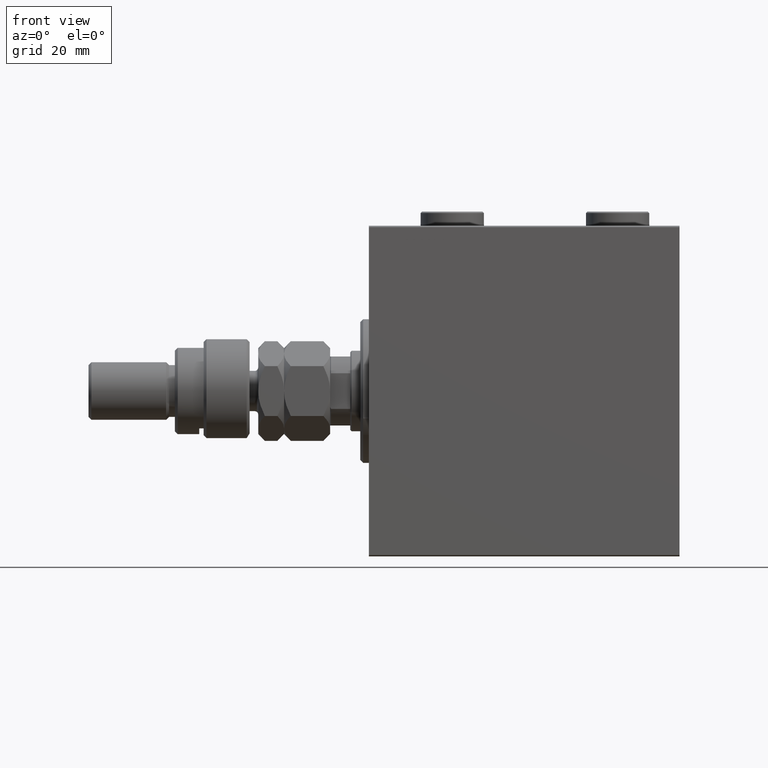
[diagram: clean part render]
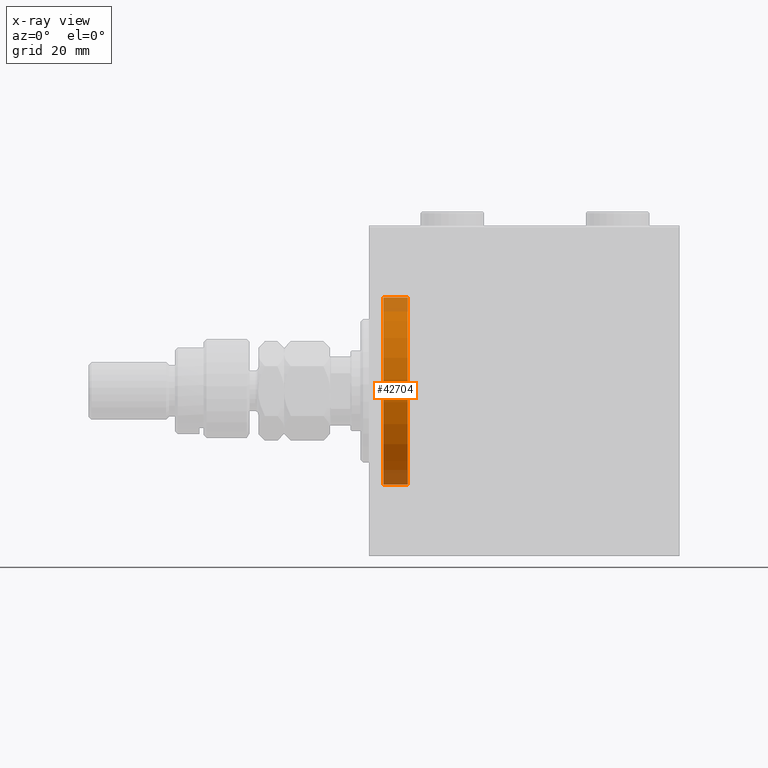
[diagram: x-ray — body ghosted, one internal face saturated and labeled with its STEP entity id]
A machine part, front view, then the same camera in x-ray: the body is ghosted and one INTERNAL B-rep face — a face not visible from any outside direction — is saturated and labeled: STEP entity #42704.
In plain terms, the highlighted cylindrical surface (partial cylindrical patch) has radius 32.5 mm, axis along (-1, -0, -0).
Its self-contained STEP definition (entity closure, byte-faithful):
#218 = CARTESIAN_POINT ( 'NONE',  ( 13.50000000000000178, 0.000000000000000000, 32.50000000000000000 ) ) ;
#223 = CARTESIAN_POINT ( 'NONE',  ( 13.50000000000000178, 0.000000000000000000, 32.50000000000000000 ) ) ;
#1411 = AXIS2_PLACEMENT_3D ( 'NONE', #21099, #43497, #36693 ) ;
#2265 = DIRECTION ( 'NONE',  ( -1.000000000000000000, -0.000000000000000000, -0.000000000000000000 ) ) ;
#5223 = CARTESIAN_POINT ( 'NONE',  ( 13.50000000000000178, 0.000000000000000000, 0.000000000000000000 ) ) ;
#6548 = EDGE_CURVE ( 'NONE', #32123, #38301, #9807, .T. ) ;
#9187 = VERTEX_POINT ( 'NONE', #37136 ) ;
#9744 = EDGE_CURVE ( 'NONE', #39700, #9187, #14833, .T. ) ;
#9807 = LINE ( 'NONE', #20319, #19336 ) ;
#12441 = AXIS2_PLACEMENT_3D ( 'NONE', #28751, #22401, #37269 ) ;
#14598 = CYLINDRICAL_SURFACE ( 'NONE', #12441, 32.50000000000000000 ) ;
#14833 = LINE ( 'NONE', #223, #34871 ) ;
#16185 = DIRECTION ( 'NONE',  ( -1.000000000000000000, 0.000000000000000000, 0.000000000000000000 ) ) ;
#17202 = ORIENTED_EDGE ( 'NONE', *, *, #6548, .T. ) ;
#19322 = CIRCLE ( 'NONE', #1411, 32.50000000000000000 ) ;
#19336 = VECTOR ( 'NONE', #2265, 1000.000000000000000 ) ;
#20319 = CARTESIAN_POINT ( 'NONE',  ( 13.50000000000000178, 3.980102097228898626E-15, -32.50000000000000000 ) ) ;
#21099 = CARTESIAN_POINT ( 'NONE',  ( 5.000000000000000000, 0.000000000000000000, 0.000000000000000000 ) ) ;
#21676 = DIRECTION ( 'NONE',  ( -1.000000000000000000, -0.000000000000000000, -0.000000000000000000 ) ) ;
#22303 = ORIENTED_EDGE ( 'NONE', *, *, #34505, .T. ) ;
#22401 = DIRECTION ( 'NONE',  ( -1.000000000000000000, -0.000000000000000000, -0.000000000000000000 ) ) ;
#24645 = EDGE_CURVE ( 'NONE', #32123, #39700, #25840, .T. ) ;
#25840 = CIRCLE ( 'NONE', #44492, 32.50000000000000000 ) ;
#26937 = ORIENTED_EDGE ( 'NONE', *, *, #24645, .F. ) ;
#27415 = DIRECTION ( 'NONE',  ( 0.000000000000000000, 0.000000000000000000, 1.000000000000000000 ) ) ;
#27967 = CARTESIAN_POINT ( 'NONE',  ( 5.000000000000000000, 3.980102097228898626E-15, -32.50000000000000000 ) ) ;
#28751 = CARTESIAN_POINT ( 'NONE',  ( 13.50000000000000178, 0.000000000000000000, 0.000000000000000000 ) ) ;
#32123 = VERTEX_POINT ( 'NONE', #46994 ) ;
#34505 = EDGE_CURVE ( 'NONE', #38301, #9187, #19322, .T. ) ;
#34871 = VECTOR ( 'NONE', #21676, 1000.000000000000000 ) ;
#35717 = EDGE_LOOP ( 'NONE', ( #26937, #17202, #22303, #35906 ) ) ;
#35906 = ORIENTED_EDGE ( 'NONE', *, *, #9744, .F. ) ;
#36693 = DIRECTION ( 'NONE',  ( 0.000000000000000000, 0.000000000000000000, 1.000000000000000000 ) ) ;
#37136 = CARTESIAN_POINT ( 'NONE',  ( 5.000000000000000000, 0.000000000000000000, 32.50000000000000000 ) ) ;
#37269 = DIRECTION ( 'NONE',  ( 0.000000000000000000, 0.000000000000000000, 1.000000000000000000 ) ) ;
#38301 = VERTEX_POINT ( 'NONE', #27967 ) ;
#39700 = VERTEX_POINT ( 'NONE', #218 ) ;
#42704 = ADVANCED_FACE ( 'NONE', ( #43842 ), #14598, .F. ) ;
#43497 = DIRECTION ( 'NONE',  ( -1.000000000000000000, 0.000000000000000000, 0.000000000000000000 ) ) ;
#43842 = FACE_OUTER_BOUND ( 'NONE', #35717, .T. ) ;
#44492 = AXIS2_PLACEMENT_3D ( 'NONE', #5223, #16185, #27415 ) ;
#46994 = CARTESIAN_POINT ( 'NONE',  ( 13.50000000000000178, 3.980102097228898626E-15, -32.50000000000000000 ) ) ;